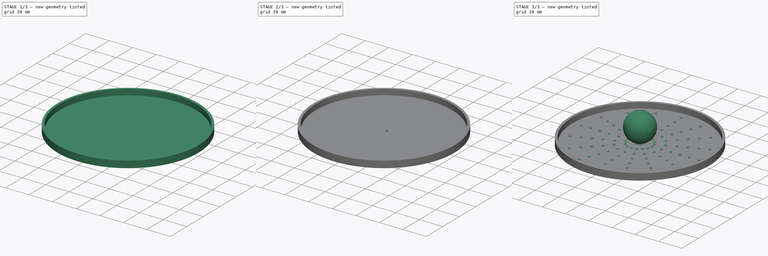
[diagram: build sequence overview — one tinted view per stage of 3, left to right]
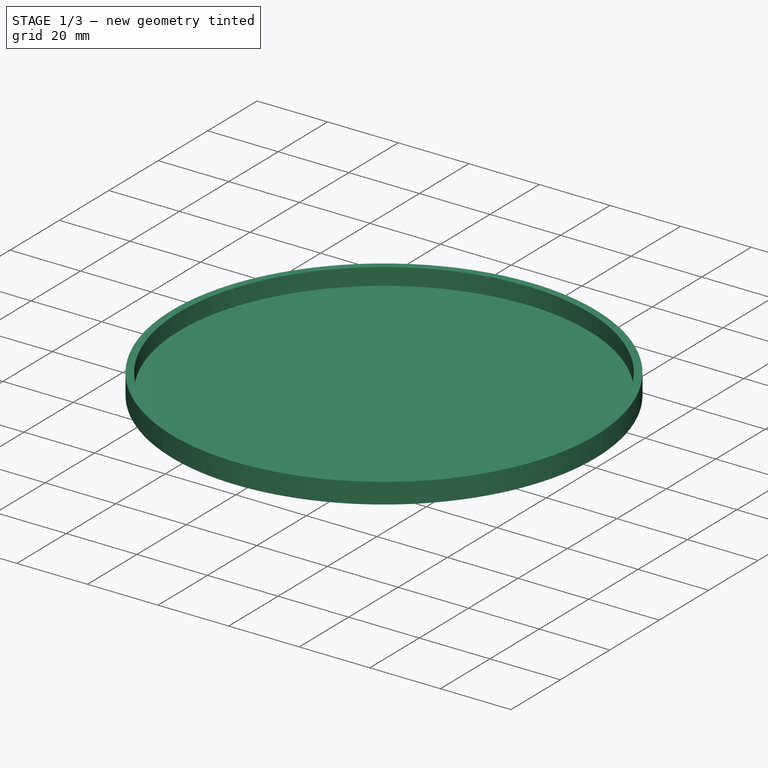
[diagram: stage 1 of 3 — iso view after this stage's code; geometry added in this stage tinted green]
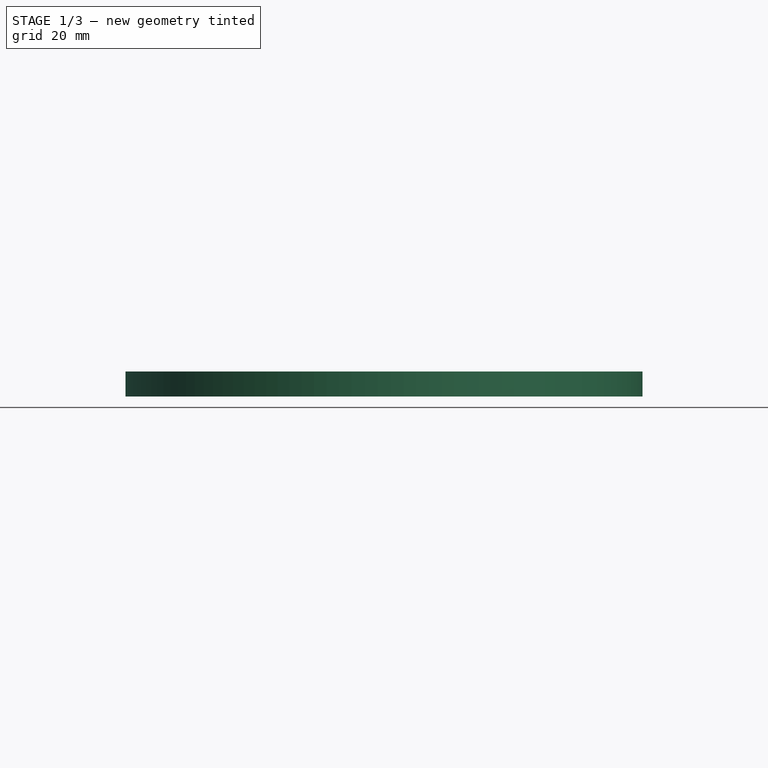
[diagram: stage 1 of 3 — front view after this stage's code; geometry added in this stage tinted green]
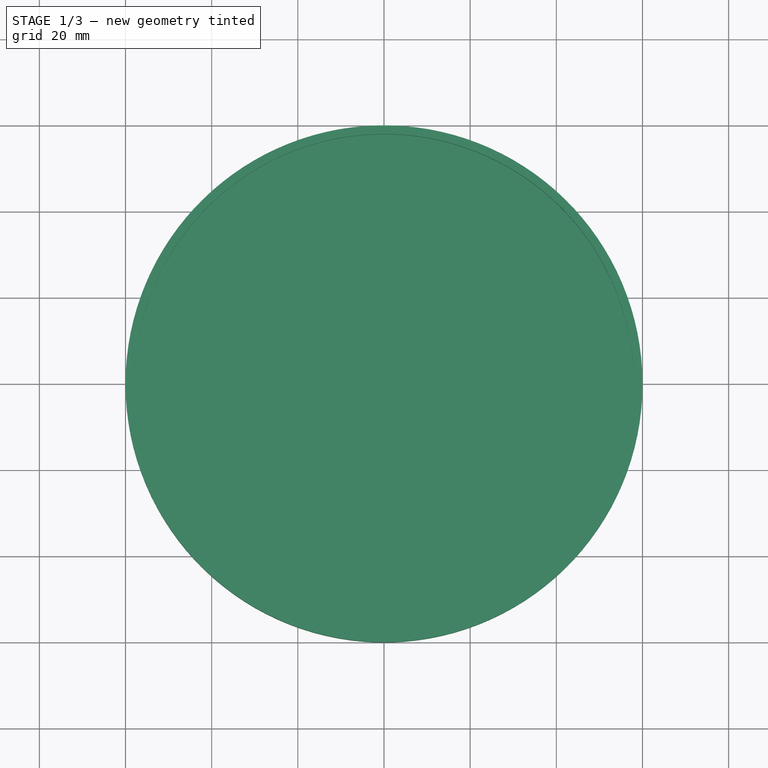
[diagram: stage 1 of 3 — top view after this stage's code; geometry added in this stage tinted green]
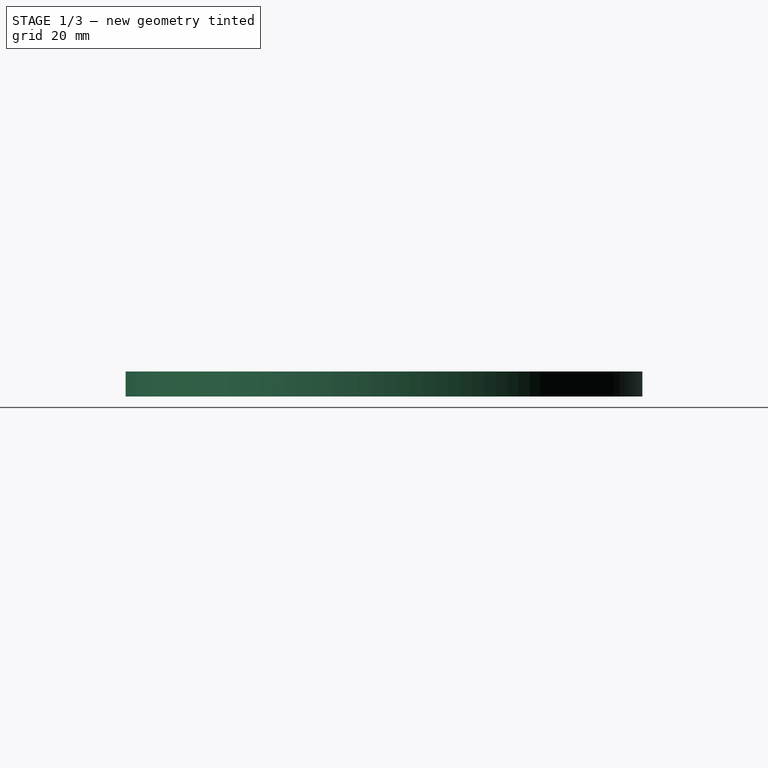
[diagram: stage 1 of 3 — right view after this stage's code; geometry added in this stage tinted green]
FCSTD DOCUMENT  (FreeCAD 0.21R33771 (Git))
Label: Rattermuster_test
License: Creative Commons Attribution 4.0
LicenseURL: https://creativecommons.org/licenses/by/4.0/
objects: Sketcher::SketchObject×3, PartDesign::Body×3, PartDesign::FeatureBase×2, App::FeaturePython×1, Part::Sphere×1, PartDesign::Pad×1, PartDesign::Pocket×1, PartDesign::Revolution×1, PartDesign::LinearPattern×1, PartDesign::PolarPattern×1, PartDesign::MultiTransform×1
note: 18 computed .brp shape members not serialized (recipe doc carries the construction recipe); baked Part::Feature solids carry a one-line shape summary decoded from their .brp

FEATURE [Sketcher::SketchObject] Sketch
  FullyConstrained = true
  MapMode = 5
  Support = -> [XY_Plane]
  expr: Constraints[1] = <<param>>.Kugeldurchmesser * <<param>>.GP_Verhaeltnis
  sketch-geometry (1):
    g0: Circle CenterX=0 CenterY=0 CenterZ=0 NormalX=0 NormalY=0 NormalZ=1 AngleXU=0 Radius=60
  constraints (2):
    c: Coincident(g0,g-1)
    c: Diameter(g0) = 120
FEATURE [PartDesign::Pad] Pad
  Direction = (0,0,1)
  Length = 5.8
  Length2 = 10
  Profile = -> Sketch
  ReferenceAxis = -> Sketch [N_Axis]
  Refine = true
  Type = 0
  expr: Length = <<param>>.Kugeldurchmesser / 5 + <<param>>.Bodendicke
FEATURE [Sketcher::SketchObject] Sketch001
  FullyConstrained = true
  MapMode = 5
  Placement = pos=(0,0,5.8) rot=(0,0,1;0rad)
  Support = -> [Pad]
  expr: Constraints[1] = Sketch.Constraints[1] - 4 mm
  sketch-geometry (1):
    g0: Circle CenterX=0 CenterY=0 CenterZ=0 NormalX=0 NormalY=0 NormalZ=1 AngleXU=0 Radius=58
  constraints (2):
    c: Coincident(g0,g-1)
    c: Diameter(g0) = 116
FEATURE [PartDesign::Pocket] Pocket
  BaseFeature = -> Pad
  Direction = (0,0,-1)
  Length = 4.8
  Length2 = 5
  Profile = -> Sketch001
  ReferenceAxis = -> Sketch001 [N_Axis]
  Refine = true
  Type = 0
  expr: Length = <<param>>.Kugeldurchmesser / 5
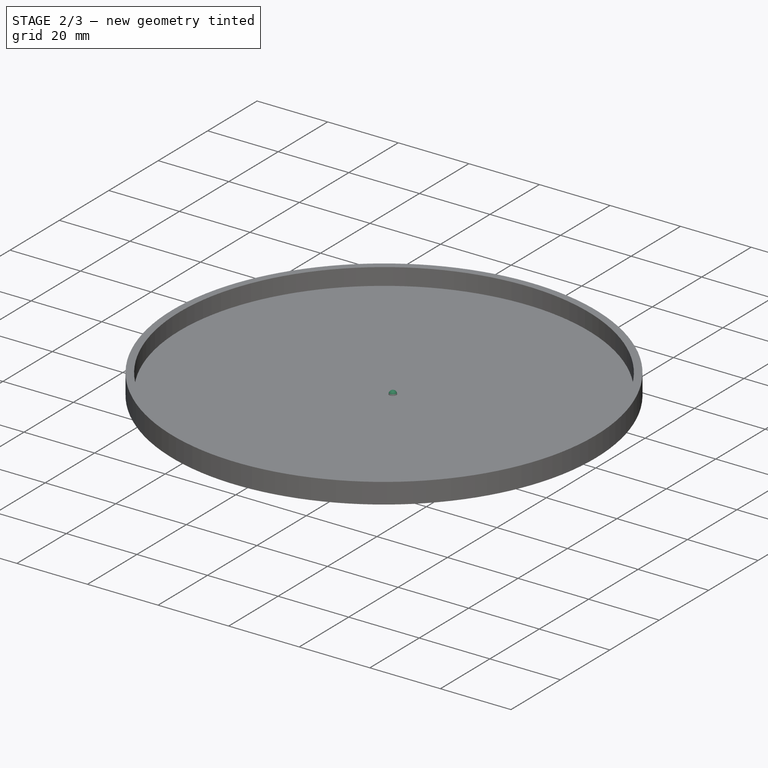
[diagram: stage 2 of 3 — iso view after this stage's code; geometry added in this stage tinted green]
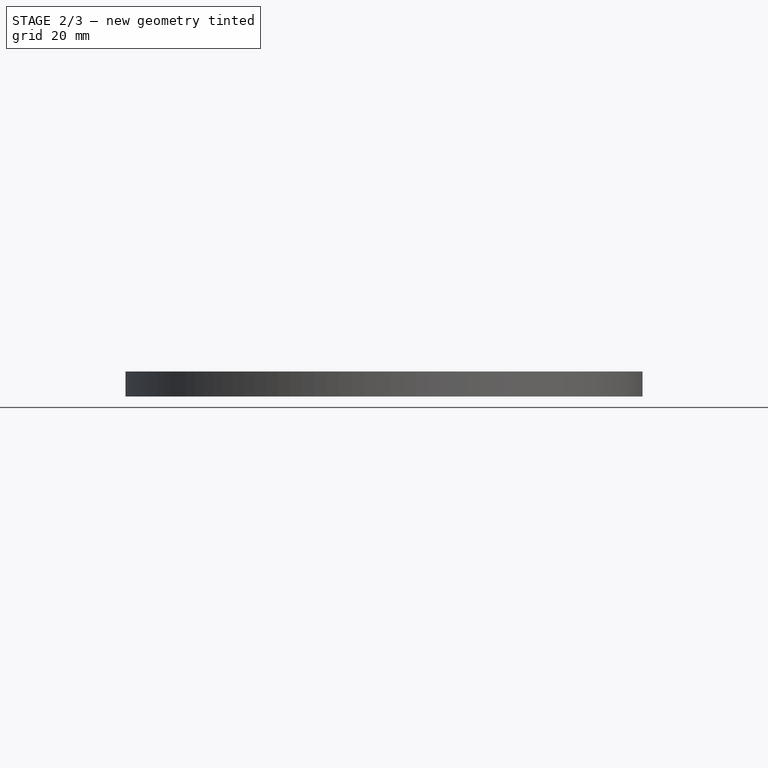
[diagram: stage 2 of 3 — front view after this stage's code; geometry added in this stage tinted green]
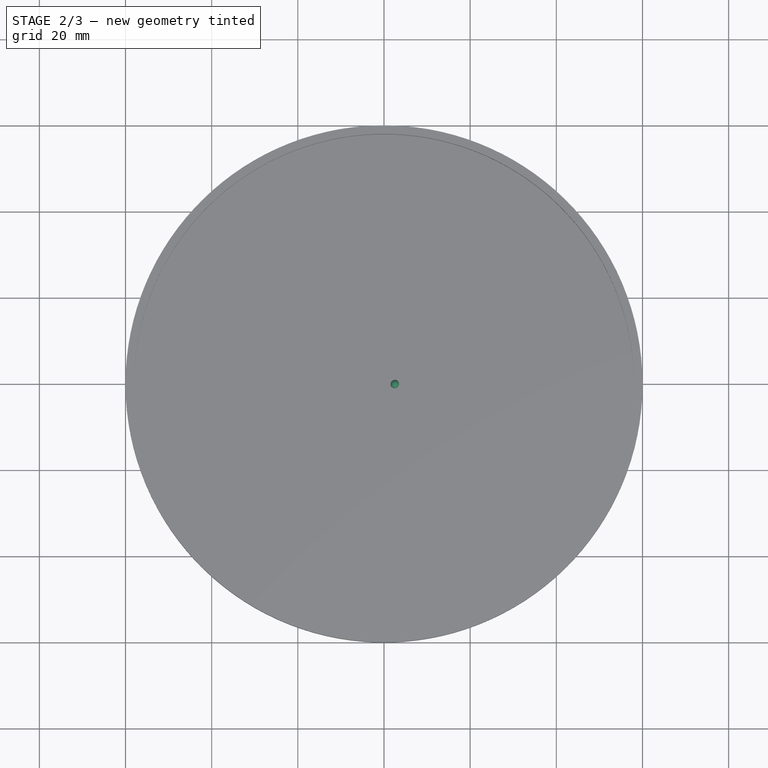
[diagram: stage 2 of 3 — top view after this stage's code; geometry added in this stage tinted green]
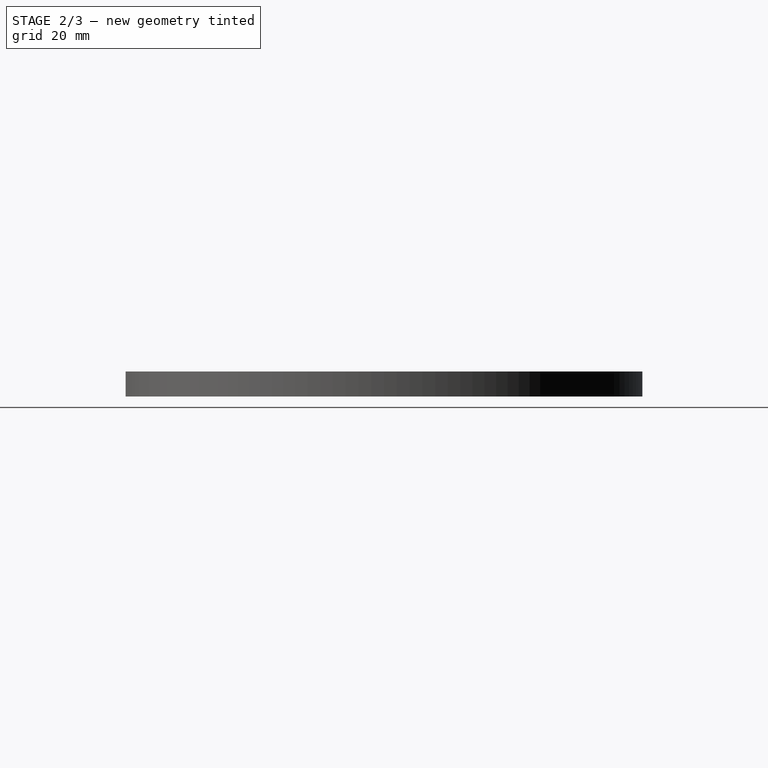
[diagram: stage 2 of 3 — right view after this stage's code; geometry added in this stage tinted green]
FEATURE [PartDesign::Body] Body
  Group = -> [Sketch,Pad,Sketch001,Pocket]
  Origin = -> Origin
  Tip = -> Pocket
FEATURE [Sketcher::SketchObject] Sketch002
  FullyConstrained = true
  MapMode = 5
  Placement = pos=(0,0,0) rot=(1,0,0;1.5708rad)
  Support = -> [XZ_Plane001]
  expr: Constraints[7] = <<param>>.Bodendicke
  expr: Constraints[8] = <<param>>.Rasterabstand / 2
  sketch-geometry (3):
    g0: LineSegment StartX=2.5 StartY=1 StartZ=0 EndX=2.5 EndY=2 EndZ=0
    g1: ArcOfCircle CenterX=2.5 CenterY=1 CenterZ=0 NormalX=0 NormalY=0 NormalZ=1 AngleXU=0 Radius=1 StartAngle=0 EndAngle=1.5708
    g2: LineSegment StartX=2.5 StartY=1 StartZ=0 EndX=3.5 EndY=1 EndZ=0
  constraints (9):
    c: Coincident(g2,g0)
    c: Coincident(g2,g1)
    c: Horizontal(g2)
    c: Vertical(g0)
    c: Coincident(g0,g1)
    c: Coincident(g0,g1)
    c: Radius(g1) = 1
    c: DistanceY(g-1,g0) = 1
    c: DistanceX(g-1,g0) = 2.5
FEATURE [PartDesign::FeatureBase] Clone
  BaseFeature = -> Pocket
FEATURE [PartDesign::Revolution] Revolution
  Angle = 360
  Axis = (0,2e-16,1)
  Base = (2.5,2e-16,1)
  BaseFeature = -> Clone
  Profile = -> Sketch002
  ReferenceAxis = -> Sketch002 [Edge1]
  Refine = true
  Reversed = true
FEATURE [PartDesign::Body] Body001  label="HalbkugelnDots"
  Group = -> [Clone,Sketch002,Revolution,MultiTransform,LinearPattern,PolarPattern]
  Origin = -> Origin001
  Tip = -> MultiTransform
FEATURE [PartDesign::FeatureBase] Clone001
  BaseFeature = -> Pocket
FEATURE [PartDesign::Body] Body002
  Group = -> [Clone001]
  Origin = -> Origin002
  Tip = -> Clone001
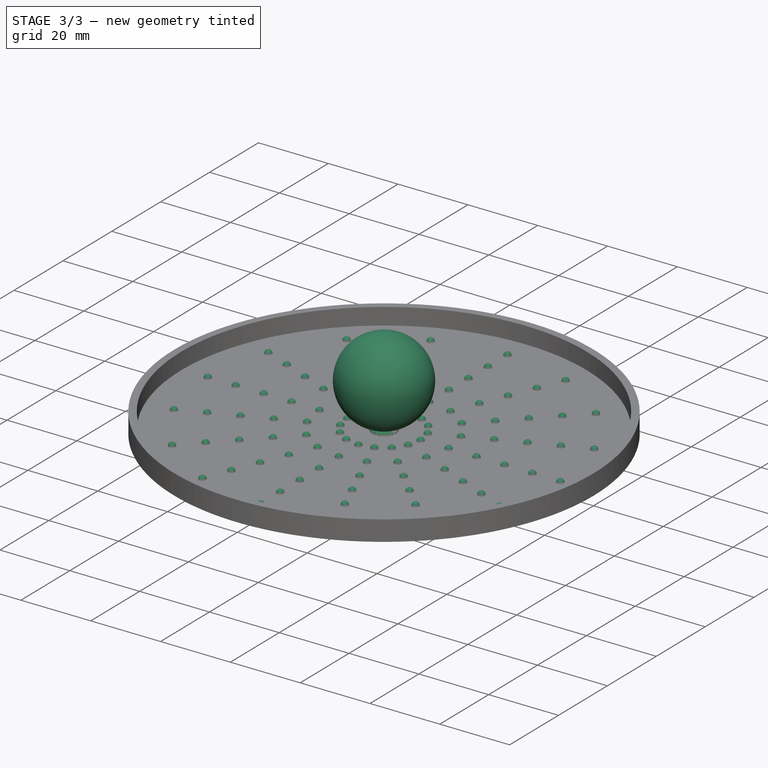
[diagram: stage 3 of 3 — iso view after this stage's code; geometry added in this stage tinted green]
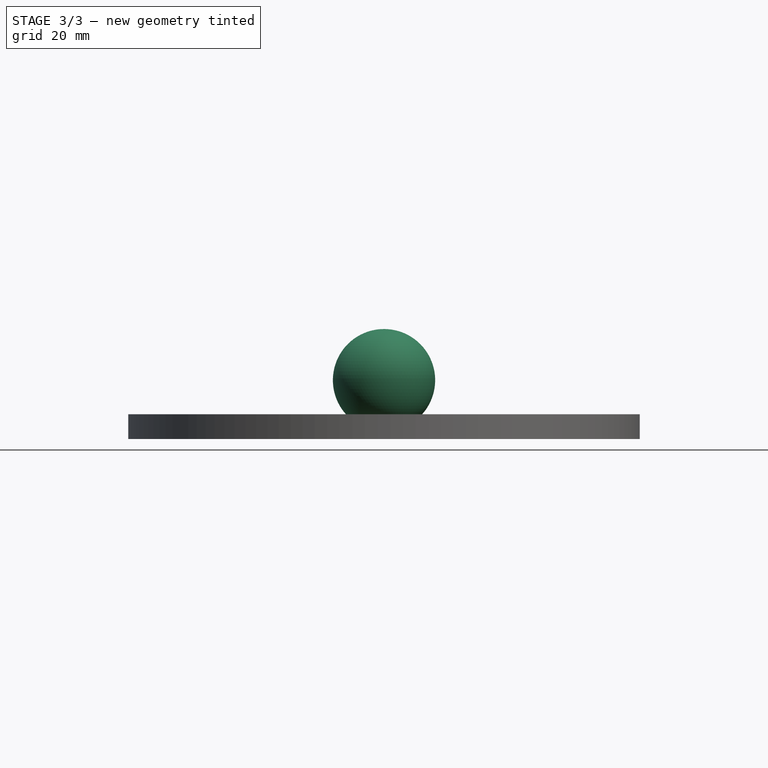
[diagram: stage 3 of 3 — front view after this stage's code; geometry added in this stage tinted green]
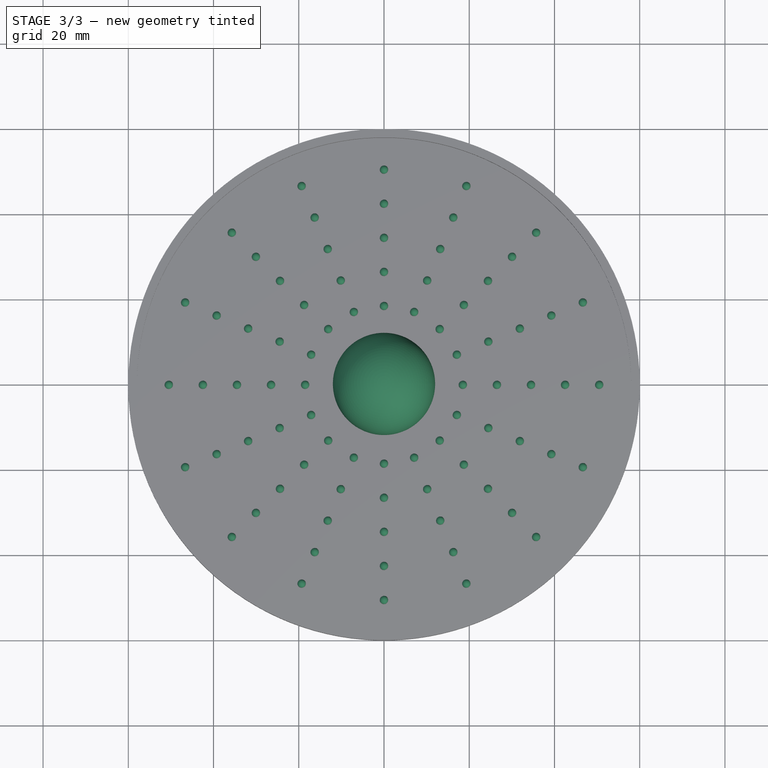
[diagram: stage 3 of 3 — top view after this stage's code; geometry added in this stage tinted green]
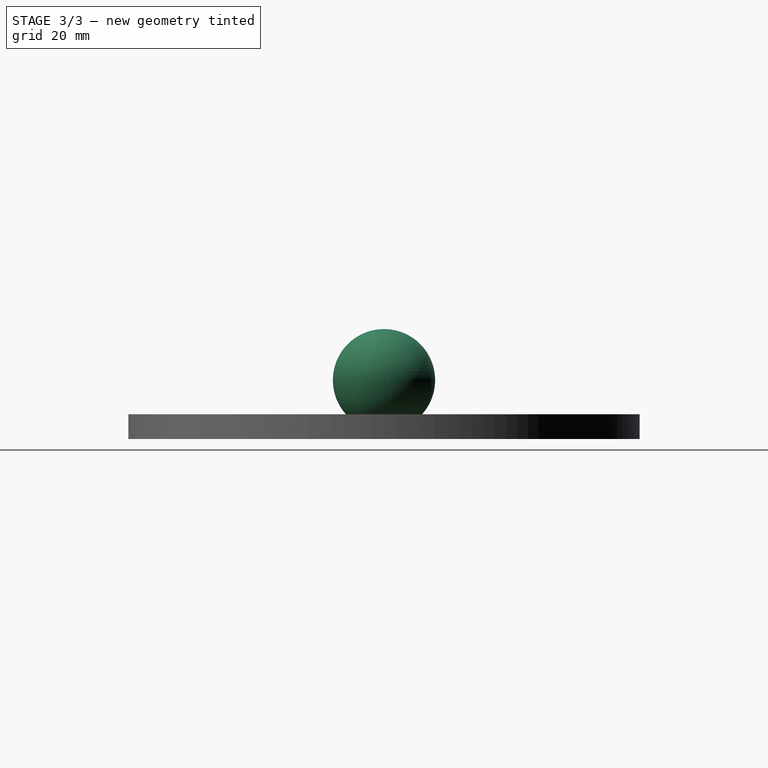
[diagram: stage 3 of 3 — right view after this stage's code; geometry added in this stage tinted green]
FEATURE [App::FeaturePython] PropertyBag  label="param"  # WARN: FeaturePython — macro-defined, semantics opaque (R4)
  Bodendicke = 1
  CustomPropertyGroups = dimensions
  GP_Verhaeltnis = 5
  Kugeldurchmesser = 24
  Rasterabstand = 5
FEATURE [Part::Sphere] Sphere
  Angle1 = -90
  Angle2 = 90
  Angle3 = 360
  AttacherType = Attacher::AttachEngine3D
  Placement = pos=(0,0,13.8) rot=(0,0,1;0rad)
  Radius = 12
  expr: .Placement.Base.z = <<param>>.Kugeldurchmesser / 2 + 1 mm
  expr: Radius = <<param>>.Kugeldurchmesser / 2
FEATURE [PartDesign::LinearPattern] LinearPattern
  Direction = -> Sketch002 [H_Axis]
  Length = 48
  Occurrences = 7
  Refine = true
  expr: Length = <<param>>.Kugeldurchmesser * <<param>>.GP_Verhaeltnis / 2 - <<param>>.Kugeldurchmesser / 2
  expr: Occurrences = Length / (<<param>>.Rasterabstand + 2 mm)
FEATURE [PartDesign::PolarPattern] PolarPattern
  Angle = 360
  Axis = -> Z_Axis001
  Occurrences = 16
  Refine = true
FEATURE [PartDesign::MultiTransform] MultiTransform
  BaseFeature = -> Revolution
  Originals = -> [Revolution]
  Refine = true
  Transformations = -> [LinearPattern,PolarPattern]
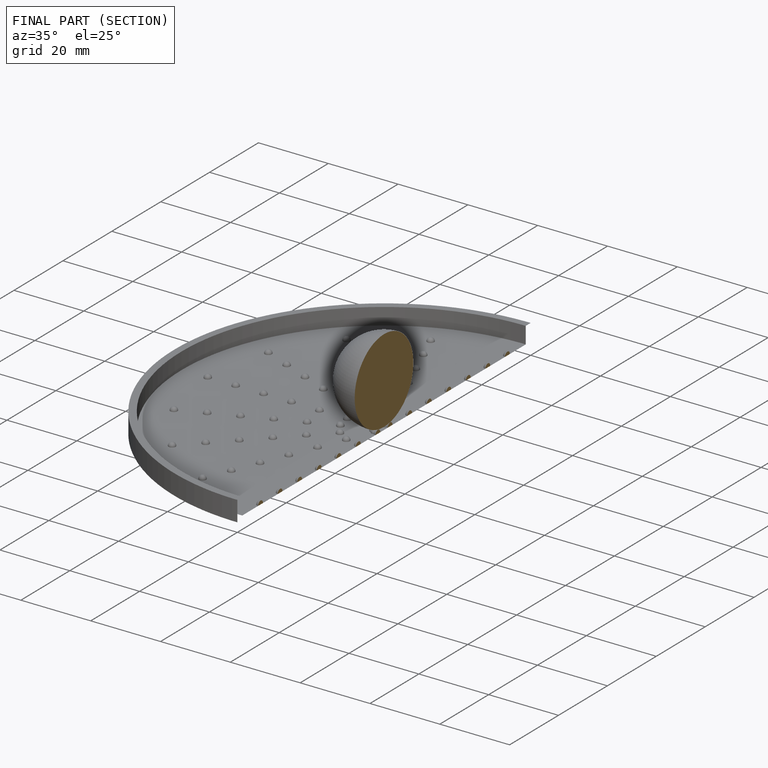
[diagram: finished part — half-section view (interior)]
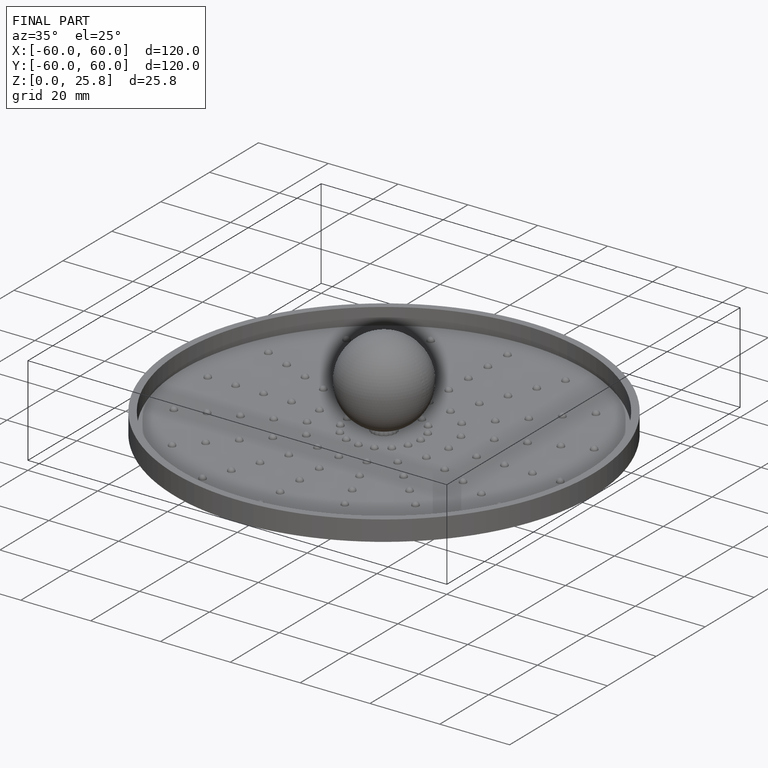
[diagram: finished part — iso view with bounding-box wireframe]
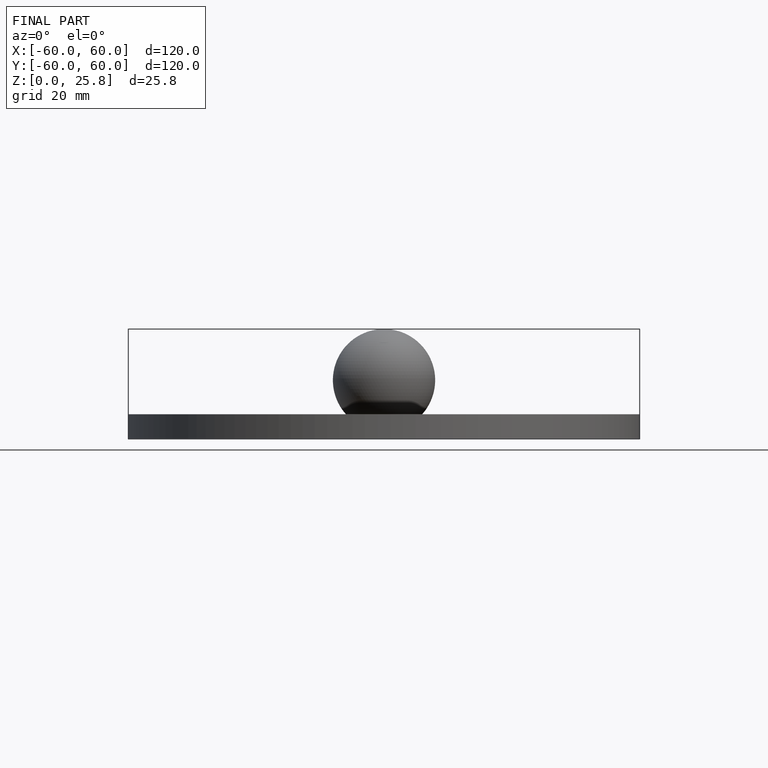
[diagram: finished part — front view with bounding-box wireframe]
